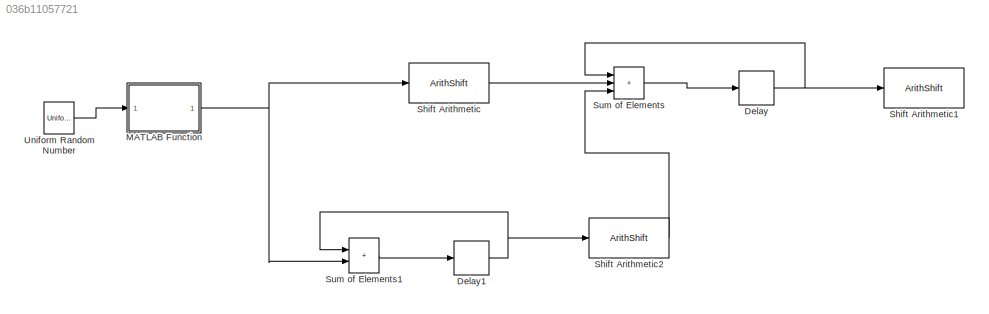
MODEL slx_036b11057721
KIND model
CONFIG AbsTol = auto
CONFIG EnableMultiTasking = off
CONFIG FixedStep = auto
CONFIG MaxStep = auto
CONFIG MinStep = auto
CONFIG RelTol = 1e-3
CONFIG SampleTimeConstraint = Unconstrained
CONFIG SolverName = VariableStepAuto
CONFIG StartTime = 0.0
CONFIG StopTime = 10.0
BLOCK [Delay] Delay
  DelayLength = 1
  InitialCondition = 0
  InputPortMap = u0
  SampleTime = 1
BLOCK [Delay] Delay1
  DelayLength = 1
  InitialCondition = 0
  InputPortMap = u0
  SampleTime = 1
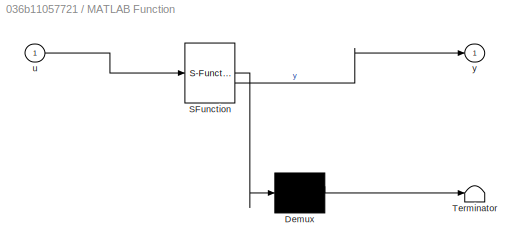
BLOCK [SubSystem] MATLAB Function
  ErrorFcn = Stateflow.Translate.translate
  PermitHierarchicalResolution = ExplicitOnly
  SFBlockType = MATLAB Function
  TreatAsAtomicUnit = on
BLOCK [Demux] MATLAB Function/ Demux 
  Outputs = 1
BLOCK [S-Function] MATLAB Function/ SFunction 
  EnableBusSupport = on
  FunctionName = sf_sfun
  PortCounts = [1 2]
  SFcnIsStateOwnerBlock = off
  SFunctionDeploymentMode = off
  Tag = Stateflow S-Function 2
BLOCK [Terminator] MATLAB Function/ Terminator 
BLOCK [Inport] MATLAB Function/u
BLOCK [Outport] MATLAB Function/y
  VectorParamsAs1DForOutWhenUnconnected = off
BLOCK [ArithShift] Shift Arithmetic
  BitShiftDirection = Left
  BitShiftNumber = 3
  InputPortMap = u0
BLOCK [ArithShift] Shift Arithmetic1
  BitShiftDirection = Right
  BitShiftNumber = 6
  InputPortMap = u0
BLOCK [ArithShift] Shift Arithmetic2
  BitShiftDirection = Right
  BitShiftNumber = 6
  InputPortMap = u0
BLOCK [Sum] Sum of Elements
  IconShape = rectangular
  Inputs = +++
BLOCK [Sum] Sum of Elements1
  IconShape = rectangular
BLOCK [UniformRandomNumber] Uniform Random Number
  SampleTime = 1
NET Delay1:1 -> Shift Arithmetic2:1, Sum of Elements1:1
NET Delay:1 -> Shift Arithmetic1:1, Sum of Elements:1
NET MATLAB Function:1 -> Shift Arithmetic:1, Sum of Elements1:2
LINE Shift Arithmetic2:1 -> Sum of Elements:3
LINE Shift Arithmetic:1 -> Sum of Elements:2
LINE Sum of Elements1:1 -> Delay1:1
LINE Sum of Elements:1 -> Delay:1
LINE Uniform Random Number:1 -> MATLAB Function:1
note: NET lines group one-source signal fan-out (src -> all destinations, sorted); 1:1 wires keep LINE
CHART MATLAB Function states=1 transitions=1
  STATE_LABEL 'eML_blk_kernel()'
  STATE_LABEL 'SCRIPT:\nfunction y = fcn(u)\n%#codegen\nif u>0\n    y=1;\nelse \n    y=-1;\nend'
CHART  states=0 transitions=0
